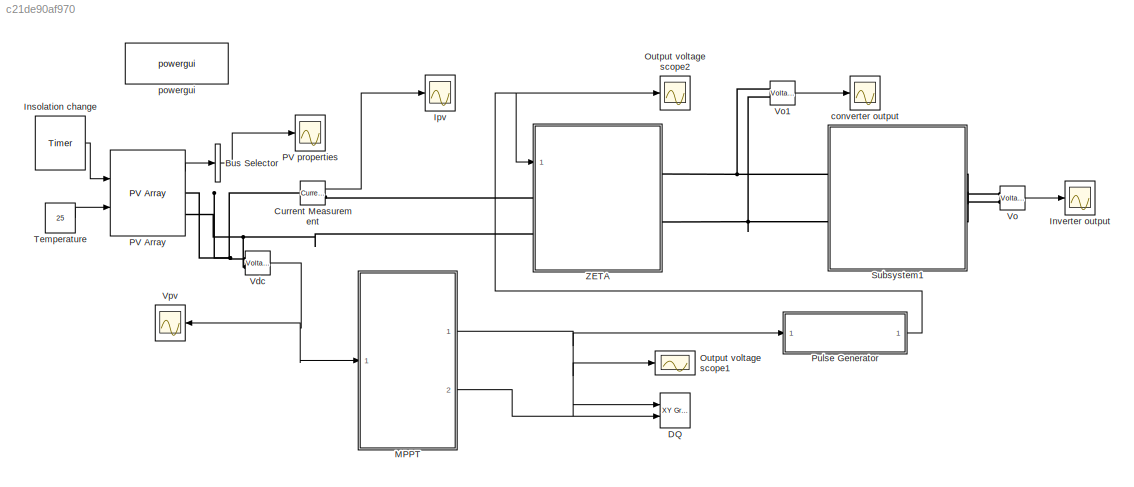
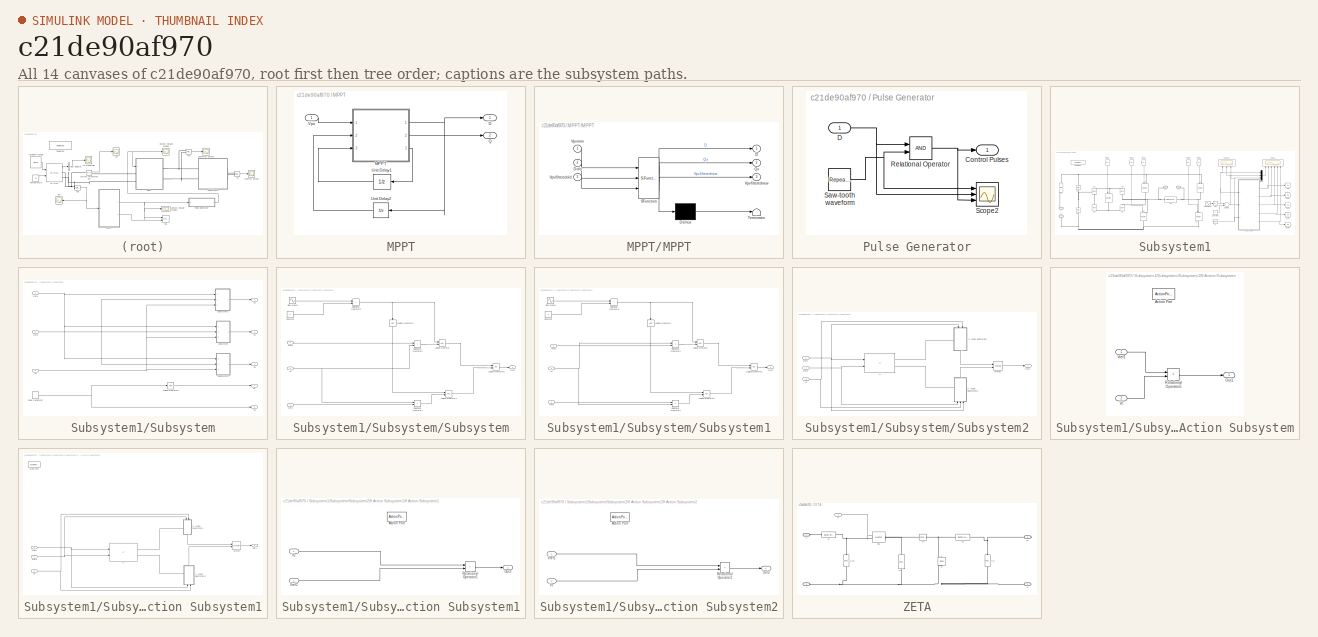
[diagram: thumbnail index - all 14 canvases of the model, root first then tree order]
MODEL slx_c21de90af970
KIND model
CONFIG AbsTol = auto
CONFIG EnableMultiTasking = off
CONFIG FixedStep = 1e-5
CONFIG MaxStep = 1e-4
CONFIG MinStep = auto
CONFIG RelTol = 1e-3
CONFIG SampleTimeConstraint = Unconstrained
CONFIG Solver = ode23tb
CONFIG SolverName = ode23tb
CONFIG StartTime = 0.0
CONFIG StopTime = .2
BLOCK [BusSelector] Bus Selector
  OutputAsBus = on
  OutputSignals = V_PV
  Ports = [1, 1]
BLOCK [Reference] Current Measurement  REF=powerlib/Measurements/Current Measurement
  Ports = [0, 1, 0, 0, 0, 1, 1]
  SourceBlock = powerlib/Measurements/Current Measurement
  SourceProductBaseCode = PS
  SourceProductName = Simscape Power Systems
  SourceType = Current Measurement
  UserDataPersistent = on
BLOCK [Reference] DQ  REF=simulink/Sinks/XY Graph
  Ports = [2]
  SourceBlock = simulink/Sinks/XY Graph
  SourceProductBaseCode = SL
  SourceProductName = Simulink
  SourceType = XY scope.
BLOCK [Reference] Insolation change  REF=powerlib_extras/Control 
Blocks/Timer
  Ports = [0, 1]
  SourceBlock = powerlib_extras/Control \nBlocks/Timer
  SourceType = Timer
BLOCK [Scope] Inverter output
  NumInputPorts = 1
  Ports = [1]
  ScopeSpecificationString = Simulink.scopes.TimeScopeBlockCfg('CurrentConfiguration', extmgr.ConfigurationSet(extmgr.Configuration('Core','General UI',true,'FigureColor',[0.501960784313725 0.501960784313725 0.501960784313725]),extmgr.Configuration('Core','Source UI',true),extmgr.Configuration('Sources','WiredSimulink',true,'DataLogging',true,'DataLoggingVariableName','inverterOutputMPPT','DataLoggingSaveFormat','StructureWit...<+2908ch>
BLOCK [Scope] Ipv
  NumInputPorts = 1
  Ports = [1]
  ScopeSpecificationString = Simulink.scopes.TimeScopeBlockCfg('CurrentConfiguration', extmgr.ConfigurationSet(extmgr.Configuration('Core','General UI',true,'FigureColor',[0.831372549019608 0.815686274509804 0.784313725490196]),extmgr.Configuration('Core','Source UI',true),extmgr.Configuration('Sources','WiredSimulink',true,'DataLoggingSaveFormat','StructureWithTime','DataLoggingDecimation','1','DataLoggingDecimateData',true)...<+2910ch>
BLOCK [SubSystem] MPPT
  Ports = [1, 2]
  RequestExecContextInheritance = off
  Variant = off
BLOCK [Outport] MPPT/D
  IconDisplay = Port number
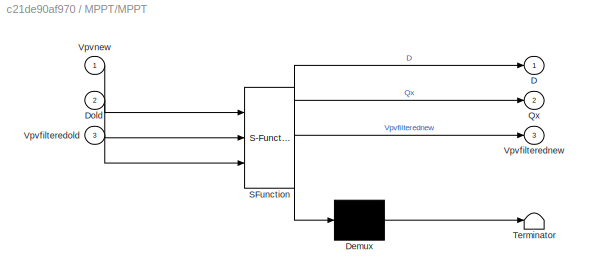
BLOCK [SubSystem] MPPT/MPPT
  ErrorFcn = Stateflow.Translate.translate
  PermitHierarchicalResolution = ExplicitOnly
  Ports = [3, 3]
  RequestExecContextInheritance = off
  SFBlockType = MATLAB Function
  TreatAsAtomicUnit = on
  Variant = off
BLOCK [Demux] MPPT/MPPT/ Demux 
  Outputs = 1
  Ports = [1, 1]
BLOCK [S-Function] MPPT/MPPT/ SFunction 
  EnableBusSupport = on
  FunctionName = sf_sfun
  PortCounts = [3 4]
  Ports = [3, 4]
  SFcnIsStateOwnerBlock = off
  SFunctionDeploymentMode = off
  Tag = Stateflow S-Function ZETAMPPTcomplete 1
BLOCK [Terminator] MPPT/MPPT/ Terminator 
BLOCK [Outport] MPPT/MPPT/D
  IconDisplay = Port number
BLOCK [Inport] MPPT/MPPT/Dold
  IconDisplay = Port number
  Port = 2
BLOCK [Outport] MPPT/MPPT/Qx
  IconDisplay = Port number
  Port = 2
BLOCK [Outport] MPPT/MPPT/Vpvfilterednew
  IconDisplay = Port number
  Port = 3
BLOCK [Inport] MPPT/MPPT/Vpvfilteredold
  IconDisplay = Port number
  Port = 3
BLOCK [Inport] MPPT/MPPT/Vpvnew
  IconDisplay = Port number
BLOCK [Outport] MPPT/Q
  IconDisplay = Port number
  Port = 2
BLOCK [UnitDelay] MPPT/Unit Delay1
  InputProcessing = Elements as channels (sample based)
  SampleTime = .0001
BLOCK [UnitDelay] MPPT/Unit Delay2
  InputProcessing = Elements as channels (sample based)
  SampleTime = .0001
BLOCK [Inport] MPPT/Vpv
  IconDisplay = Port number
BLOCK [Scope] Output voltage scope1
  NumInputPorts = 1
  Ports = [1]
  ScopeSpecificationString = Simulink.scopes.TimeScopeBlockCfg('CurrentConfiguration', extmgr.ConfigurationSet(extmgr.Configuration('Core','General UI',true,'FigureColor',[0.501960784313725 0.501960784313725 0.501960784313725]),extmgr.Configuration('Core','Source UI',true),extmgr.Configuration('Sources','WiredSimulink',true,'DataLoggingVariableName','ScopeData1','DataLoggingSaveFormat','StructureWithTime','DataLoggingDecimati...<+2903ch>
BLOCK [Scope] Output voltage scope2
  NumInputPorts = 1
  Ports = [1]
  ScopeSpecificationString = Simulink.scopes.TimeScopeBlockCfg('CurrentConfiguration', extmgr.ConfigurationSet(extmgr.Configuration('Core','General UI',true,'FigureColor',[0.501960784313725 0.501960784313725 0.501960784313725]),extmgr.Configuration('Core','Source UI',true),extmgr.Configuration('Sources','WiredSimulink',true,'DataLoggingVariableName','ScopeData1','DataLoggingSaveFormat','StructureWithTime','DataLoggingDecimati...<+2878ch>
BLOCK [Reference] PV Array  REF=re_lib/Solar/PV Array
  Ports = [2, 1, 0, 0, 0, 0, 2]
  SourceBlock = re_lib/Solar/PV Array
  SourceProductBaseCode = PS
  SourceProductName = Simscape Power Systems
  SourceType = PV array
BLOCK [Scope] PV properties
  NumInputPorts = 1
  Ports = [1]
  ScopeSpecificationString = Simulink.scopes.TimeScopeBlockCfg('CurrentConfiguration', extmgr.ConfigurationSet(extmgr.Configuration('Core','General UI',true,'FigureColor',[0.831372549019608 0.815686274509804 0.784313725490196]),extmgr.Configuration('Core','Source UI',true),extmgr.Configuration('Sources','WiredSimulink',true,'DataLogging',true,'DataLoggingSaveFormat','StructureWithTime','DataLoggingDecimation','1','DataLogging...<+2963ch>
BLOCK [SubSystem] Pulse Generator
  Ports = [1, 1]
  RequestExecContextInheritance = off
  Variant = off
BLOCK [Outport] Pulse Generator/Control Pulses
  IconDisplay = Port number
BLOCK [Inport] Pulse Generator/D
  IconDisplay = Port number
BLOCK [RelationalOperator] Pulse Generator/Relational Operator
  InputSameDT = off
  OutDataTypeStr = boolean
  Ports = [2, 1]
BLOCK [Reference] Pulse Generator/Saw-tooth waveform  REF=simulink/Sources/Repeating
Sequence
  Ports = [0, 1]
  SourceBlock = simulink/Sources/Repeating\nSequence
  SourceProductBaseCode = SL
  SourceProductName = Simulink
  SourceType = Repeating table
BLOCK [Scope] Pulse Generator/Scope2
  NumInputPorts = 3
  Ports = [3]
  ScopeSpecificationString = Simulink.scopes.TimeScopeBlockCfg('CurrentConfiguration', extmgr.ConfigurationSet(extmgr.Configuration('Core','General UI',true),extmgr.Configuration('Core','Source UI',true),extmgr.Configuration('Sources','WiredSimulink',true,'DataLoggingVariableName','ScopeData2','DataLoggingSaveFormat','StructureWithTime','DataLoggingLimitDataPoints',true,'DataLoggingDecimation','1','DataLoggingDecimateData',tr...<+3160ch>
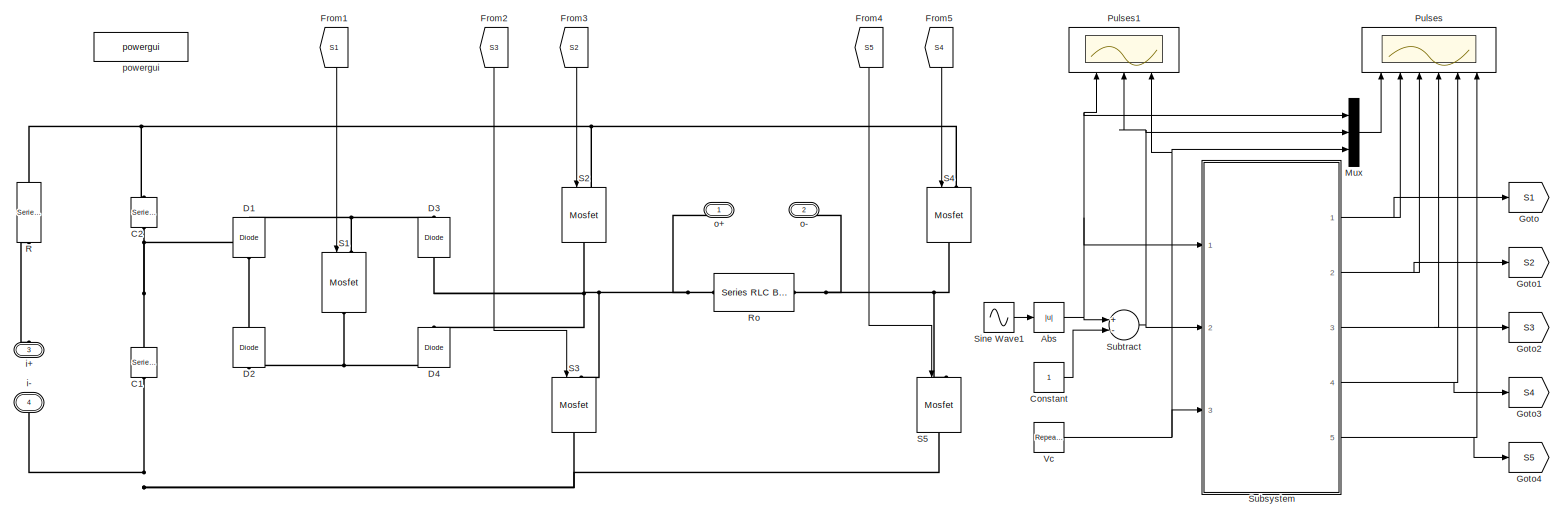
[diagram: Subsystem1 - part 1/1, most of the canvas]
BLOCK [SubSystem] Subsystem1
  Ports = [0, 0, 0, 0, 0, 2, 2]
  RequestExecContextInheritance = off
  Variant = off
BLOCK [Abs] Subsystem1/Abs
  SaturateOnIntegerOverflow = off
BLOCK [Reference] Subsystem1/C1  REF=powerlib/Elements/Series RLC Branch
  Ports = [0, 0, 0, 0, 0, 1, 1]
  SourceBlock = powerlib/Elements/Series RLC Branch
  SourceProductBaseCode = PS
  SourceProductName = Simscape Power Systems
  SourceType = Series RLC Branch
BLOCK [Reference] Subsystem1/C2  REF=powerlib/Elements/Series RLC Branch
  Ports = [0, 0, 0, 0, 0, 1, 1]
  SourceBlock = powerlib/Elements/Series RLC Branch
  SourceProductBaseCode = PS
  SourceProductName = Simscape Power Systems
  SourceType = Series RLC Branch
BLOCK [Constant] Subsystem1/Constant
BLOCK [Reference] Subsystem1/D1  REF=powerlib/Power
Electronics/Diode
  Ports = [0, 0, 0, 0, 0, 1, 1]
  SourceBlock = powerlib/Power\nElectronics/Diode
  SourceProductBaseCode = PS
  SourceProductName = Simscape Power Systems
  SourceType = Diode
BLOCK [Reference] Subsystem1/D2  REF=powerlib/Power
Electronics/Diode
  Ports = [0, 0, 0, 0, 0, 1, 1]
  SourceBlock = powerlib/Power\nElectronics/Diode
  SourceProductBaseCode = PS
  SourceProductName = Simscape Power Systems
  SourceType = Diode
BLOCK [Reference] Subsystem1/D3  REF=powerlib/Power
Electronics/Diode
  Ports = [0, 0, 0, 0, 0, 1, 1]
  SourceBlock = powerlib/Power\nElectronics/Diode
  SourceProductBaseCode = PS
  SourceProductName = Simscape Power Systems
  SourceType = Diode
BLOCK [Reference] Subsystem1/D4  REF=powerlib/Power
Electronics/Diode
  Ports = [0, 0, 0, 0, 0, 1, 1]
  SourceBlock = powerlib/Power\nElectronics/Diode
  SourceProductBaseCode = PS
  SourceProductName = Simscape Power Systems
  SourceType = Diode
BLOCK [From] Subsystem1/From1
  GotoTag = S1
BLOCK [From] Subsystem1/From2
  GotoTag = S3
BLOCK [From] Subsystem1/From3
  GotoTag = S2
BLOCK [From] Subsystem1/From4
  GotoTag = S5
BLOCK [From] Subsystem1/From5
  GotoTag = S4
BLOCK [Goto] Subsystem1/Goto
  GotoTag = S1
BLOCK [Goto] Subsystem1/Goto1
  GotoTag = S2
BLOCK [Goto] Subsystem1/Goto2
  GotoTag = S3
BLOCK [Goto] Subsystem1/Goto3
  GotoTag = S4
BLOCK [Goto] Subsystem1/Goto4
  GotoTag = S5
BLOCK [Mux] Subsystem1/Mux
  DisplayOption = bar
  Inputs = 3
  Ports = [3, 1]
BLOCK [Scope] Subsystem1/Pulses
  NumInputPorts = 6
  Ports = [6]
  ScopeSpecificationString = Simulink.scopes.TimeScopeBlockCfg('CurrentConfiguration', extmgr.ConfigurationSet(extmgr.Configuration('Core','General UI',true,'FigureColor',[0.501960784313725 0.501960784313725 0.501960784313725]),extmgr.Configuration('Core','Source UI',true),extmgr.Configuration('Sources','WiredSimulink',true,'DataLoggingSaveFormat','StructureWithTime','DataLoggingDecimation','1','DataLoggingDecimateData',true,...<+6623ch>
BLOCK [Scope] Subsystem1/Pulses1
  NumInputPorts = 3
  Ports = [3]
  ScopeSpecificationString = Simulink.scopes.TimeScopeBlockCfg('CurrentConfiguration', extmgr.ConfigurationSet(extmgr.Configuration('Core','General UI',true,'FigureColor',[0.501960784313725 0.501960784313725 0.501960784313725]),extmgr.Configuration('Core','Source UI',true),extmgr.Configuration('Sources','WiredSimulink',true,'DataLoggingSaveFormat','StructureWithTime','DataLoggingDecimation','1','DataLoggingDecimateData',true,...<+2163ch>
BLOCK [Reference] Subsystem1/R  REF=powerlib/Elements/Series RLC Branch
  Ports = [0, 0, 0, 0, 0, 1, 1]
  SourceBlock = powerlib/Elements/Series RLC Branch
  SourceProductBaseCode = PS
  SourceProductName = Simscape Power Systems
  SourceType = Series RLC Branch
BLOCK [Reference] Subsystem1/Ro  REF=powerlib/Elements/Series RLC Branch
  Ports = [0, 0, 0, 0, 0, 1, 1]
  SourceBlock = powerlib/Elements/Series RLC Branch
  SourceProductBaseCode = PS
  SourceProductName = Simscape Power Systems
  SourceType = Series RLC Branch
BLOCK [Reference] Subsystem1/S1  REF=powerlib/Power
Electronics/Mosfet
  Ports = [1, 0, 0, 0, 0, 1, 1]
  SourceBlock = powerlib/Power\nElectronics/Mosfet
  SourceProductBaseCode = PS
  SourceProductName = Simscape Power Systems
  SourceType = Mosfet
BLOCK [Reference] Subsystem1/S2  REF=powerlib/Power
Electronics/Mosfet
  Ports = [1, 0, 0, 0, 0, 1, 1]
  SourceBlock = powerlib/Power\nElectronics/Mosfet
  SourceProductBaseCode = PS
  SourceProductName = Simscape Power Systems
  SourceType = Mosfet
BLOCK [Reference] Subsystem1/S3  REF=powerlib/Power
Electronics/Mosfet
  Ports = [1, 0, 0, 0, 0, 1, 1]
  SourceBlock = powerlib/Power\nElectronics/Mosfet
  SourceProductBaseCode = PS
  SourceProductName = Simscape Power Systems
  SourceType = Mosfet
BLOCK [Reference] Subsystem1/S4  REF=powerlib/Power
Electronics/Mosfet
  Ports = [1, 0, 0, 0, 0, 1, 1]
  SourceBlock = powerlib/Power\nElectronics/Mosfet
  SourceProductBaseCode = PS
  SourceProductName = Simscape Power Systems
  SourceType = Mosfet
BLOCK [Reference] Subsystem1/S5  REF=powerlib/Power
Electronics/Mosfet
  Ports = [1, 0, 0, 0, 0, 1, 1]
  SourceBlock = powerlib/Power\nElectronics/Mosfet
  SourceProductBaseCode = PS
  SourceProductName = Simscape Power Systems
  SourceType = Mosfet
BLOCK [Sin] Subsystem1/Sine Wave1
  Amplitude = 2.5
  Frequency = 2*pi*50
  Ports = [0, 1]
  SampleTime = 0
  VectorParams1D = off
BLOCK [SubSystem] Subsystem1/Subsystem
  Ports = [3, 5]
  RequestExecContextInheritance = off
  Variant = off
BLOCK [Logic] Subsystem1/Subsystem/Logical Operator2
  AllPortsSameDT = off
  Operator = NOT
  OutDataTypeStr = boolean
  Ports = [1, 1]
BLOCK [DiscretePulseGenerator] Subsystem1/Subsystem/Pulse Generator
  Period = .02
  Ports = [0, 1]
  PulseType = Time based
  PulseWidth = 50
BLOCK [Outport] Subsystem1/Subsystem/S1
  IconDisplay = Port number
BLOCK [Outport] Subsystem1/Subsystem/S2
  IconDisplay = Port number
  Port = 2
BLOCK [Outport] Subsystem1/Subsystem/S3
  IconDisplay = Port number
  Port = 3
BLOCK [Outport] Subsystem1/Subsystem/S4
  IconDisplay = Port number
  Port = 4
BLOCK [Outport] Subsystem1/Subsystem/S5
  IconDisplay = Port number
  Port = 5
BLOCK [SubSystem] Subsystem1/Subsystem/Subsystem
  Ports = [3, 1]
  RequestExecContextInheritance = off
  Variant = off
BLOCK [Constant] Subsystem1/Subsystem/Subsystem/Constant
  Value = 0
BLOCK [Logic] Subsystem1/Subsystem/Subsystem/Logical Operator
  AllPortsSameDT = off
  OutDataTypeStr = boolean
  Ports = [2, 1]
BLOCK [Logic] Subsystem1/Subsystem/Subsystem/Logical Operator1
  AllPortsSameDT = off
  OutDataTypeStr = boolean
  Ports = [2, 1]
BLOCK [Logic] Subsystem1/Subsystem/Subsystem/Logical Operator3
  AllPortsSameDT = off
  Operator = OR
  OutDataTypeStr = boolean
  Ports = [2, 1]
BLOCK [Logic] Subsystem1/Subsystem/Subsystem/Logical Operator4
  AllPortsSameDT = off
  Operator = NOT
  OutDataTypeStr = boolean
  Ports = [1, 1]
BLOCK [Outport] Subsystem1/Subsystem/Subsystem/Out1
  IconDisplay = Port number
BLOCK [RelationalOperator] Subsystem1/Subsystem/Subsystem/Relational Operator1
  InputSameDT = off
  Operator = >
  OutDataTypeStr = boolean
  Ports = [2, 1]
BLOCK [RelationalOperator] Subsystem1/Subsystem/Subsystem/Relational Operator2
  InputSameDT = off
  Operator = >
  OutDataTypeStr = boolean
  Ports = [2, 1]
BLOCK [RelationalOperator] Subsystem1/Subsystem/Subsystem/Relational Operator3
  InputSameDT = off
  Operator = >
  OutDataTypeStr = boolean
  Ports = [2, 1]
BLOCK [Sin] Subsystem1/Subsystem/Subsystem/Sine Wave1
  Amplitude = 100
  Frequency = 2*pi*50
  Ports = [0, 1]
  SampleTime = 0
  VectorParams1D = off
BLOCK [Inport] Subsystem1/Subsystem/Subsystem/Vc
  IconDisplay = Port number
  Port = 3
BLOCK [Inport] Subsystem1/Subsystem/Subsystem/Vref1
  IconDisplay = Port number
BLOCK [Inport] Subsystem1/Subsystem/Subsystem/Vref2
  IconDisplay = Port number
  Port = 2
BLOCK [SubSystem] Subsystem1/Subsystem/Subsystem1
  Ports = [3, 1]
  RequestExecContextInheritance = off
  Variant = off
BLOCK [Constant] Subsystem1/Subsystem/Subsystem1/Constant
  Value = 0
BLOCK [Logic] Subsystem1/Subsystem/Subsystem1/Logical Operator
  AllPortsSameDT = off
  OutDataTypeStr = boolean
  Ports = [2, 1]
BLOCK [Logic] Subsystem1/Subsystem/Subsystem1/Logical Operator1
  AllPortsSameDT = off
  OutDataTypeStr = boolean
  Ports = [2, 1]
BLOCK [Logic] Subsystem1/Subsystem/Subsystem1/Logical Operator3
  AllPortsSameDT = off
  Operator = OR
  OutDataTypeStr = boolean
  Ports = [2, 1]
BLOCK [Logic] Subsystem1/Subsystem/Subsystem1/Logical Operator4
  AllPortsSameDT = off
  Operator = NOT
  OutDataTypeStr = boolean
  Ports = [1, 1]
BLOCK [Outport] Subsystem1/Subsystem/Subsystem1/Out1
  IconDisplay = Port number
BLOCK [RelationalOperator] Subsystem1/Subsystem/Subsystem1/Relational Operator1
  InputSameDT = off
  Operator = >
  OutDataTypeStr = boolean
  Ports = [2, 1]
BLOCK [RelationalOperator] Subsystem1/Subsystem/Subsystem1/Relational Operator2
  InputSameDT = off
  Operator = >
  OutDataTypeStr = boolean
  Ports = [2, 1]
BLOCK [RelationalOperator] Subsystem1/Subsystem/Subsystem1/Relational Operator3
  InputSameDT = off
  Operator = >
  OutDataTypeStr = boolean
  Ports = [2, 1]
BLOCK [Sin] Subsystem1/Subsystem/Subsystem1/Sine Wave1
  Amplitude = 100
  Frequency = 2*pi*50
  Ports = [0, 1]
  SampleTime = 0
  VectorParams1D = off
BLOCK [Inport] Subsystem1/Subsystem/Subsystem1/Vc
  IconDisplay = Port number
  Port = 3
BLOCK [Inport] Subsystem1/Subsystem/Subsystem1/Vref1
  IconDisplay = Port number
BLOCK [Inport] Subsystem1/Subsystem/Subsystem1/Vref2
  IconDisplay = Port number
  Port = 2
BLOCK [SubSystem] Subsystem1/Subsystem/Subsystem2
  Ports = [3, 1]
  RequestExecContextInheritance = off
  Variant = off
BLOCK [If] Subsystem1/Subsystem/Subsystem2/If
  IfExpression = u1 < 75 & u2 < 0
  NumInputs = 2
  Ports = [2, 2]
BLOCK [SubSystem] Subsystem1/Subsystem/Subsystem2/If Action Subsystem
  Ports = [2, 1, 0, 0, 0, 0, 0, 1]
  RequestExecContextInheritance = off
  TreatAsAtomicUnit = on
  Variant = off
BLOCK [ActionPort] Subsystem1/Subsystem/Subsystem2/If Action Subsystem/Action Port
  ActionType = then
BLOCK [Outport] Subsystem1/Subsystem/Subsystem2/If Action Subsystem/Out1
  IconDisplay = Port number
BLOCK [RelationalOperator] Subsystem1/Subsystem/Subsystem2/If Action Subsystem/Relational Operator5
  InputSameDT = off
  Operator = >
  OutDataTypeStr = boolean
  Ports = [2, 1]
BLOCK [Inport] Subsystem1/Subsystem/Subsystem2/If Action Subsystem/Vc
  IconDisplay = Port number
  Port = 2
BLOCK [Inport] Subsystem1/Subsystem/Subsystem2/If Action Subsystem/Vref1
  IconDisplay = Port number
BLOCK [SubSystem] Subsystem1/Subsystem/Subsystem2/If Action Subsystem1
  Ports = [3, 1, 0, 0, 0, 0, 0, 1]
  RequestExecContextInheritance = off
  TreatAsAtomicUnit = on
  Variant = off
BLOCK [ActionPort] Subsystem1/Subsystem/Subsystem2/If Action Subsystem1/Action Port
  ActionType = else
BLOCK [If] Subsystem1/Subsystem/Subsystem2/If Action Subsystem1/If
  IfExpression = u2 > 0
  NumInputs = 2
  Ports = [2, 2]
BLOCK [SubSystem] Subsystem1/Subsystem/Subsystem2/If Action Subsystem1/If Action Subsystem1
  Ports = [2, 1, 0, 0, 0, 0, 0, 1]
  RequestExecContextInheritance = off
  TreatAsAtomicUnit = on
  Variant = off
BLOCK [ActionPort] Subsystem1/Subsystem/Subsystem2/If Action Subsystem1/If Action Subsystem1/Action Port
  ActionType = then
BLOCK [Outport] Subsystem1/Subsystem/Subsystem2/If Action Subsystem1/If Action Subsystem1/Out3
  IconDisplay = Port number
BLOCK [RelationalOperator] Subsystem1/Subsystem/Subsystem2/If Action Subsystem1/If Action Subsystem1/Relational Operator1
  InputSameDT = off
  Operator = >
  OutDataTypeStr = boolean
  Ports = [2, 1]
BLOCK [Inport] Subsystem1/Subsystem/Subsystem2/If Action Subsystem1/If Action Subsystem1/Vc
  IconDisplay = Port number
  Port = 2
BLOCK [Inport] Subsystem1/Subsystem/Subsystem2/If Action Subsystem1/If Action Subsystem1/Vref2
  IconDisplay = Port number
BLOCK [SubSystem] Subsystem1/Subsystem/Subsystem2/If Action Subsystem1/If Action Subsystem2
  Ports = [2, 1, 0, 0, 0, 0, 0, 1]
  RequestExecContextInheritance = off
  TreatAsAtomicUnit = on
  Variant = off
BLOCK [ActionPort] Subsystem1/Subsystem/Subsystem2/If Action Subsystem1/If Action Subsystem2/Action Port
  ActionType = else
BLOCK [Outport] Subsystem1/Subsystem/Subsystem2/If Action Subsystem1/If Action Subsystem2/Out3
  IconDisplay = Port number
BLOCK [RelationalOperator] Subsystem1/Subsystem/Subsystem2/If Action Subsystem1/If Action Subsystem2/Relational Operator1
  InputSameDT = off
  Operator = >
  OutDataTypeStr = boolean
  Ports = [2, 1]
BLOCK [Inport] Subsystem1/Subsystem/Subsystem2/If Action Subsystem1/If Action Subsystem2/Vc
  IconDisplay = Port number
  Port = 2
BLOCK [Inport] Subsystem1/Subsystem/Subsystem2/If Action Subsystem1/If Action Subsystem2/Vref1
  IconDisplay = Port number
BLOCK [Merge] Subsystem1/Subsystem/Subsystem2/If Action Subsystem1/Merge
  Ports = [2, 1]
BLOCK [Outport] Subsystem1/Subsystem/Subsystem2/If Action Subsystem1/Out1
  IconDisplay = Port number
BLOCK [Inport] Subsystem1/Subsystem/Subsystem2/If Action Subsystem1/Vc
  IconDisplay = Port number
  Port = 2
BLOCK [Inport] Subsystem1/Subsystem/Subsystem2/If Action Subsystem1/Vref1
  IconDisplay = Port number
  Port = 3
BLOCK [Inport] Subsystem1/Subsystem/Subsystem2/If Action Subsystem1/Vref2
  IconDisplay = Port number
BLOCK [Merge] Subsystem1/Subsystem/Subsystem2/Merge
  Ports = [2, 1]
BLOCK [Outport] Subsystem1/Subsystem/Subsystem2/Out1
  IconDisplay = Port number
BLOCK [Inport] Subsystem1/Subsystem/Subsystem2/Vc
  IconDisplay = Port number
  Port = 3
BLOCK [Inport] Subsystem1/Subsystem/Subsystem2/Vref1
  IconDisplay = Port number
BLOCK [Inport] Subsystem1/Subsystem/Subsystem2/Vref2
  IconDisplay = Port number
  Port = 2
BLOCK [Inport] Subsystem1/Subsystem/Vc
  IconDisplay = Port number
  Port = 3
BLOCK [Inport] Subsystem1/Subsystem/Vref1
  IconDisplay = Port number
BLOCK [Inport] Subsystem1/Subsystem/Vref2
  IconDisplay = Port number
  Port = 2
BLOCK [Sum] Subsystem1/Subtract
  InputSameDT = off
  Inputs = +-
  OutDataTypeStr = Inherit: Inherit via internal rule
  Ports = [2, 1]
  SaturateOnIntegerOverflow = off
BLOCK [Reference] Subsystem1/Vc  REF=simulink/Sources/Repeating
Sequence
  Ports = [0, 1]
  SourceBlock = simulink/Sources/Repeating\nSequence
  SourceProductBaseCode = SL
  SourceProductName = Simulink
  SourceType = Repeating table
BLOCK [PMIOPort] Subsystem1/i+
  Port = 3
  Side = Left
BLOCK [PMIOPort] Subsystem1/i-
  Port = 4
  Side = Left
BLOCK [PMIOPort] Subsystem1/o+
  Port = 1
  Side = Right
BLOCK [PMIOPort] Subsystem1/o-
  Port = 2
  Side = Right
BLOCK [Reference] Subsystem1/powergui  REF=powerlib/powergui
  Ports = []
  Priority = 1
  SourceBlock = powerlib/powergui
  SourceProductBaseCode = PS
  SourceProductName = Simscape Power Systems
  SourceType = PSB option menu block
BLOCK [Constant] Temperature
  SampleTime = 2e-5
  Value = 25
  VectorParams1D = off
BLOCK [Reference] Vdc   REF=powerlib/Measurements/Voltage Measurement
  AttributesFormatString = \n
  Ports = [0, 1, 0, 0, 0, 2]
  SourceBlock = powerlib/Measurements/Voltage Measurement
  SourceProductBaseCode = PS
  SourceProductName = Simscape Power Systems
  SourceType = Voltage Measurement
  Tag = PoWeRsYsTeMmEaSuReMeNt
BLOCK [Reference] Vo  REF=powerlib/Measurements/Voltage Measurement
  Ports = [0, 1, 0, 0, 0, 2]
  SourceBlock = powerlib/Measurements/Voltage Measurement
  SourceProductBaseCode = PS
  SourceProductName = Simscape Power Systems
  SourceType = Voltage Measurement
BLOCK [Reference] Vo1  REF=powerlib/Measurements/Voltage Measurement
  Ports = [0, 1, 0, 0, 0, 2]
  SourceBlock = powerlib/Measurements/Voltage Measurement
  SourceProductBaseCode = PS
  SourceProductName = Simscape Power Systems
  SourceType = Voltage Measurement
BLOCK [Scope] Vpv
  NumInputPorts = 1
  Ports = [1]
  ScopeSpecificationString = Simulink.scopes.TimeScopeBlockCfg('CurrentConfiguration', extmgr.ConfigurationSet(extmgr.Configuration('Core','General UI',true,'FigureColor',[0.831372549019608 0.815686274509804 0.784313725490196]),extmgr.Configuration('Core','Source UI',true),extmgr.Configuration('Sources','WiredSimulink',true,'DataLogging',true,'DataLoggingSaveFormat','StructureWithTime','DataLoggingDecimation','1','DataLogging...<+2959ch>
BLOCK [SubSystem] ZETA
  Ports = [1, 0, 0, 0, 0, 2, 2]
  RequestExecContextInheritance = off
  Variant = off
BLOCK [PMIOPort] ZETA/+i
  Port = 1
  Side = Left
BLOCK [PMIOPort] ZETA/+o
  Port = 2
  Side = Right
BLOCK [PMIOPort] ZETA/-i
  Port = 3
  Side = Left
BLOCK [PMIOPort] ZETA/-o
  Port = 4
  Side = Right
BLOCK [Reference] ZETA/Cc  REF=powerlib/Elements/Series RLC Branch
  Ports = [0, 0, 0, 0, 0, 1, 1]
  SourceBlock = powerlib/Elements/Series RLC Branch
  SourceProductBaseCode = PS
  SourceProductName = Simscape Power Systems
  SourceType = Series RLC Branch
BLOCK [Reference] ZETA/Co  REF=powerlib/Elements/Series RLC Branch
  Ports = [0, 0, 0, 0, 0, 1, 1]
  SourceBlock = powerlib/Elements/Series RLC Branch
  SourceProductBaseCode = PS
  SourceProductName = Simscape Power Systems
  SourceType = Series RLC Branch
BLOCK [Reference] ZETA/Co1  REF=powerlib/Elements/Series RLC Branch
  Ports = [0, 0, 0, 0, 0, 1, 1]
  SourceBlock = powerlib/Elements/Series RLC Branch
  SourceProductBaseCode = PS
  SourceProductName = Simscape Power Systems
  SourceType = Series RLC Branch
BLOCK [Reference] ZETA/D  REF=powerlib/Power
Electronics/Diode
  Ports = [0, 0, 0, 0, 0, 1, 1]
  SourceBlock = powerlib/Power\nElectronics/Diode
  SourceProductBaseCode = PS
  SourceProductName = Simscape Power Systems
  SourceType = Diode
BLOCK [Reference] ZETA/L1  REF=powerlib/Elements/Series RLC Branch
  Ports = [0, 0, 0, 0, 0, 1, 1]
  SourceBlock = powerlib/Elements/Series RLC Branch
  SourceProductBaseCode = PS
  SourceProductName = Simscape Power Systems
  SourceType = Series RLC Branch
BLOCK [Reference] ZETA/L2  REF=powerlib/Elements/Series RLC Branch
  Ports = [0, 0, 0, 0, 0, 1, 1]
  SourceBlock = powerlib/Elements/Series RLC Branch
  SourceProductBaseCode = PS
  SourceProductName = Simscape Power Systems
  SourceType = Series RLC Branch
BLOCK [Reference] ZETA/R  REF=powerlib/Elements/Series RLC Branch
  Ports = [0, 0, 0, 0, 0, 1, 1]
  SourceBlock = powerlib/Elements/Series RLC Branch
  SourceProductBaseCode = PS
  SourceProductName = Simscape Power Systems
  SourceType = Series RLC Branch
BLOCK [Reference] ZETA/Sw  REF=powerlib/Power
Electronics/Mosfet
  Ports = [1, 0, 0, 0, 0, 1, 1]
  SourceBlock = powerlib/Power\nElectronics/Mosfet
  SourceProductBaseCode = PS
  SourceProductName = Simscape Power Systems
  SourceType = Mosfet
BLOCK [Inport] ZETA/d
  IconDisplay = Port number
BLOCK [Scope] converter output
  NumInputPorts = 1
  Ports = [1]
  ScopeSpecificationString = Simulink.scopes.TimeScopeBlockCfg('CurrentConfiguration', extmgr.ConfigurationSet(extmgr.Configuration('Core','General UI',true,'FigureColor',[0.501960784313725 0.501960784313725 0.501960784313725]),extmgr.Configuration('Core','Source UI',true),extmgr.Configuration('Sources','WiredSimulink',true,'DataLogging',true,'DataLoggingVariableName','converterop','DataLoggingSaveFormat','StructureWithTime',...<+2904ch>
BLOCK [Reference] powergui  REF=powerlib/powergui
  Ports = []
  Priority = 1
  SourceBlock = powerlib/powergui
  SourceProductBaseCode = PS
  SourceProductName = Simscape Power Systems
  SourceType = PSB option menu block
LINE Bus Selector:1 -> PV properties:1
LINE Current Measurement:1 -> Ipv:1
LINE Insolation change:1 -> PV Array:1
NET MPPT/MPPT:1 -> MPPT/D:1, MPPT/Unit Delay2:1
LINE MPPT/MPPT:2 -> MPPT/Q:1
LINE MPPT/MPPT:3 -> MPPT/Unit Delay1:1
LINE MPPT/Unit Delay1:1 -> MPPT/MPPT:3
LINE MPPT/Unit Delay2:1 -> MPPT/MPPT:2
LINE MPPT/Vpv:1 -> MPPT/MPPT:1
NET MPPT:1 -> DQ:1, Output voltage scope1:1, Pulse Generator:1
LINE MPPT:2 -> DQ:2
LINE PV Array:1 -> Bus Selector:1
NET Pulse Generator/D:1 -> Pulse Generator/Relational Operator:1, Pulse Generator/Scope2:2
NET Pulse Generator/Relational Operator:1 -> Pulse Generator/Control Pulses:1, Pulse Generator/Scope2:3
NET Pulse Generator/Saw-tooth waveform:1 -> Pulse Generator/Relational Operator:2, Pulse Generator/Scope2:1
NET Pulse Generator:1 -> Output voltage scope2:1, ZETA:1
NET Subsystem1/Abs:1 -> Subsystem1/Mux:1, Subsystem1/Pulses1:1, Subsystem1/Subsystem:1, Subsystem1/Subtract:1
LINE Subsystem1/Constant:1 -> Subsystem1/Subtract:2
LINE Subsystem1/From1:1 -> Subsystem1/S1:1
LINE Subsystem1/From2:1 -> Subsystem1/S3:1
LINE Subsystem1/From3:1 -> Subsystem1/S2:1
LINE Subsystem1/From4:1 -> Subsystem1/S5:1
LINE Subsystem1/From5:1 -> Subsystem1/S4:1
LINE Subsystem1/Mux:1 -> Subsystem1/Pulses:1
LINE Subsystem1/Sine Wave1:1 -> Subsystem1/Abs:1
LINE Subsystem1/Subsystem/Logical Operator2:1 -> Subsystem1/Subsystem/S4:1
NET Subsystem1/Subsystem/Pulse Generator:1 -> Subsystem1/Subsystem/Logical Operator2:1, Subsystem1/Subsystem/S5:1
LINE Subsystem1/Subsystem/Subsystem/Constant:1 -> Subsystem1/Subsystem/Subsystem/Relational Operator3:2
LINE Subsystem1/Subsystem/Subsystem/Logical Operator1:1 -> Subsystem1/Subsystem/Subsystem/Logical Operator3:2
LINE Subsystem1/Subsystem/Subsystem/Logical Operator3:1 -> Subsystem1/Subsystem/Subsystem/Out1:1
LINE Subsystem1/Subsystem/Subsystem/Logical Operator4:1 -> Subsystem1/Subsystem/Subsystem/Logical Operator1:1
LINE Subsystem1/Subsystem/Subsystem/Logical Operator:1 -> Subsystem1/Subsystem/Subsystem/Logical Operator3:1
LINE Subsystem1/Subsystem/Subsystem/Relational Operator1:1 -> Subsystem1/Subsystem/Subsystem/Logical Operator1:2
LINE Subsystem1/Subsystem/Subsystem/Relational Operator2:1 -> Subsystem1/Subsystem/Subsystem/Logical Operator:2
NET Subsystem1/Subsystem/Subsystem/Relational Operator3:1 -> Subsystem1/Subsystem/Subsystem/Logical Operator4:1, Subsystem1/Subsystem/Subsystem/Logical Operator:1
LINE Subsystem1/Subsystem/Subsystem/Sine Wave1:1 -> Subsystem1/Subsystem/Subsystem/Relational Operator3:1
NET Subsystem1/Subsystem/Subsystem/Vc:1 -> Subsystem1/Subsystem/Subsystem/Relational Operator1:1, Subsystem1/Subsystem/Subsystem/Relational Operator2:2
LINE Subsystem1/Subsystem/Subsystem/Vref1:1 -> Subsystem1/Subsystem/Subsystem/Relational Operator1:2
LINE Subsystem1/Subsystem/Subsystem/Vref2:1 -> Subsystem1/Subsystem/Subsystem/Relational Operator2:1
LINE Subsystem1/Subsystem/Subsystem1/Constant:1 -> Subsystem1/Subsystem/Subsystem1/Relational Operator3:2
LINE Subsystem1/Subsystem/Subsystem1/Logical Operator1:1 -> Subsystem1/Subsystem/Subsystem1/Logical Operator3:2
LINE Subsystem1/Subsystem/Subsystem1/Logical Operator3:1 -> Subsystem1/Subsystem/Subsystem1/Out1:1
LINE Subsystem1/Subsystem/Subsystem1/Logical Operator4:1 -> Subsystem1/Subsystem/Subsystem1/Logical Operator1:1
LINE Subsystem1/Subsystem/Subsystem1/Logical Operator:1 -> Subsystem1/Subsystem/Subsystem1/Logical Operator3:1
LINE Subsystem1/Subsystem/Subsystem1/Relational Operator1:1 -> Subsystem1/Subsystem/Subsystem1/Logical Operator1:2
LINE Subsystem1/Subsystem/Subsystem1/Relational Operator2:1 -> Subsystem1/Subsystem/Subsystem1/Logical Operator:2
NET Subsystem1/Subsystem/Subsystem1/Relational Operator3:1 -> Subsystem1/Subsystem/Subsystem1/Logical Operator4:1, Subsystem1/Subsystem/Subsystem1/Logical Operator:1
LINE Subsystem1/Subsystem/Subsystem1/Sine Wave1:1 -> Subsystem1/Subsystem/Subsystem1/Relational Operator3:1
NET Subsystem1/Subsystem/Subsystem1/Vc:1 -> Subsystem1/Subsystem/Subsystem1/Relational Operator1:2, Subsystem1/Subsystem/Subsystem1/Relational Operator2:1
LINE Subsystem1/Subsystem/Subsystem1/Vref1:1 -> Subsystem1/Subsystem/Subsystem1/Relational Operator2:2
LINE Subsystem1/Subsystem/Subsystem1/Vref2:1 -> Subsystem1/Subsystem/Subsystem1/Relational Operator1:1
LINE Subsystem1/Subsystem/Subsystem1:1 -> Subsystem1/Subsystem/S3:1
LINE Subsystem1/Subsystem/Subsystem2/If Action Subsystem/Relational Operator5:1 -> Subsystem1/Subsystem/Subsystem2/If Action Subsystem/Out1:1
LINE Subsystem1/Subsystem/Subsystem2/If Action Subsystem/Vc:1 -> Subsystem1/Subsystem/Subsystem2/If Action Subsystem/Relational Operator5:2
LINE Subsystem1/Subsystem/Subsystem2/If Action Subsystem/Vref1:1 -> Subsystem1/Subsystem/Subsystem2/If Action Subsystem/Relational Operator5:1
LINE Subsystem1/Subsystem/Subsystem2/If Action Subsystem1/If Action Subsystem1/Relational Operator1:1 -> Subsystem1/Subsystem/Subsystem2/If Action Subsystem1/If Action Subsystem1/Out3:1
LINE Subsystem1/Subsystem/Subsystem2/If Action Subsystem1/If Action Subsystem1/Vc:1 -> Subsystem1/Subsystem/Subsystem2/If Action Subsystem1/If Action Subsystem1/Relational Operator1:1
LINE Subsystem1/Subsystem/Subsystem2/If Action Subsystem1/If Action Subsystem1/Vref2:1 -> Subsystem1/Subsystem/Subsystem2/If Action Subsystem1/If Action Subsystem1/Relational Operator1:2
LINE Subsystem1/Subsystem/Subsystem2/If Action Subsystem1/If Action Subsystem1:1 -> Subsystem1/Subsystem/Subsystem2/If Action Subsystem1/Merge:1
LINE Subsystem1/Subsystem/Subsystem2/If Action Subsystem1/If Action Subsystem2/Relational Operator1:1 -> Subsystem1/Subsystem/Subsystem2/If Action Subsystem1/If Action Subsystem2/Out3:1
LINE Subsystem1/Subsystem/Subsystem2/If Action Subsystem1/If Action Subsystem2/Vc:1 -> Subsystem1/Subsystem/Subsystem2/If Action Subsystem1/If Action Subsystem2/Relational Operator1:2
LINE Subsystem1/Subsystem/Subsystem2/If Action Subsystem1/If Action Subsystem2/Vref1:1 -> Subsystem1/Subsystem/Subsystem2/If Action Subsystem1/If Action Subsystem2/Relational Operator1:1
LINE Subsystem1/Subsystem/Subsystem2/If Action Subsystem1/If Action Subsystem2:1 -> Subsystem1/Subsystem/Subsystem2/If Action Subsystem1/Merge:2
LINE Subsystem1/Subsystem/Subsystem2/If Action Subsystem1/If:1 -> Subsystem1/Subsystem/Subsystem2/If Action Subsystem1/If Action Subsystem1:ifaction
LINE Subsystem1/Subsystem/Subsystem2/If Action Subsystem1/If:2 -> Subsystem1/Subsystem/Subsystem2/If Action Subsystem1/If Action Subsystem2:ifaction
LINE Subsystem1/Subsystem/Subsystem2/If Action Subsystem1/Merge:1 -> Subsystem1/Subsystem/Subsystem2/If Action Subsystem1/Out1:1
NET Subsystem1/Subsystem/Subsystem2/If Action Subsystem1/Vc:1 -> Subsystem1/Subsystem/Subsystem2/If Action Subsystem1/If Action Subsystem1:2, Subsystem1/Subsystem/Subsystem2/If Action Subsystem1/If Action Subsystem2:2
NET Subsystem1/Subsystem/Subsystem2/If Action Subsystem1/Vref1:1 -> Subsystem1/Subsystem/Subsystem2/If Action Subsystem1/If Action Subsystem2:1, Subsystem1/Subsystem/Subsystem2/If Action Subsystem1/If:1
NET Subsystem1/Subsystem/Subsystem2/If Action Subsystem1/Vref2:1 -> Subsystem1/Subsystem/Subsystem2/If Action Subsystem1/If Action Subsystem1:1, Subsystem1/Subsystem/Subsystem2/If Action Subsystem1/If:2
LINE Subsystem1/Subsystem/Subsystem2/If Action Subsystem1:1 -> Subsystem1/Subsystem/Subsystem2/Merge:2
LINE Subsystem1/Subsystem/Subsystem2/If Action Subsystem:1 -> Subsystem1/Subsystem/Subsystem2/Merge:1
LINE Subsystem1/Subsystem/Subsystem2/If:1 -> Subsystem1/Subsystem/Subsystem2/If Action Subsystem:ifaction
LINE Subsystem1/Subsystem/Subsystem2/If:2 -> Subsystem1/Subsystem/Subsystem2/If Action Subsystem1:ifaction
LINE Subsystem1/Subsystem/Subsystem2/Merge:1 -> Subsystem1/Subsystem/Subsystem2/Out1:1
NET Subsystem1/Subsystem/Subsystem2/Vc:1 -> Subsystem1/Subsystem/Subsystem2/If Action Subsystem1:2, Subsystem1/Subsystem/Subsystem2/If Action Subsystem:2
NET Subsystem1/Subsystem/Subsystem2/Vref1:1 -> Subsystem1/Subsystem/Subsystem2/If Action Subsystem1:3, Subsystem1/Subsystem/Subsystem2/If Action Subsystem:1, Subsystem1/Subsystem/Subsystem2/If:1
NET Subsystem1/Subsystem/Subsystem2/Vref2:1 -> Subsystem1/Subsystem/Subsystem2/If Action Subsystem1:1, Subsystem1/Subsystem/Subsystem2/If:2
LINE Subsystem1/Subsystem/Subsystem2:1 -> Subsystem1/Subsystem/S1:1
LINE Subsystem1/Subsystem/Subsystem:1 -> Subsystem1/Subsystem/S2:1
NET Subsystem1/Subsystem/Vc:1 -> Subsystem1/Subsystem/Subsystem1:3, Subsystem1/Subsystem/Subsystem2:3, Subsystem1/Subsystem/Subsystem:3
NET Subsystem1/Subsystem/Vref1:1 -> Subsystem1/Subsystem/Subsystem1:1, Subsystem1/Subsystem/Subsystem2:1, Subsystem1/Subsystem/Subsystem:1
NET Subsystem1/Subsystem/Vref2:1 -> Subsystem1/Subsystem/Subsystem1:2, Subsystem1/Subsystem/Subsystem2:2, Subsystem1/Subsystem/Subsystem:2
NET Subsystem1/Subsystem:1 -> Subsystem1/Goto:1, Subsystem1/Pulses:2
NET Subsystem1/Subsystem:2 -> Subsystem1/Goto1:1, Subsystem1/Pulses:3
NET Subsystem1/Subsystem:3 -> Subsystem1/Goto2:1, Subsystem1/Pulses:4
NET Subsystem1/Subsystem:4 -> Subsystem1/Goto3:1, Subsystem1/Pulses:5
NET Subsystem1/Subsystem:5 -> Subsystem1/Goto4:1, Subsystem1/Pulses:6
NET Subsystem1/Subtract:1 -> Subsystem1/Mux:2, Subsystem1/Pulses1:2, Subsystem1/Subsystem:2
NET Subsystem1/Vc:1 -> Subsystem1/Mux:3, Subsystem1/Pulses1:3, Subsystem1/Subsystem:3
LINE Temperature:1 -> PV Array:2
NET Vdc :1 -> MPPT:1, Vpv:1
LINE Vo1:1 -> converter output:1
LINE Vo:1 -> Inverter output:1
LINE ZETA/d:1 -> ZETA/Sw:1
PNET net1: Current Measurement:LConn1 -- PV Array:RConn1 -- Vdc :LConn1
PLINE Current Measurement:RConn1 -- ZETA:LConn1
PNET net2: PV Array:RConn2 -- Vdc :LConn2 -- ZETA:LConn2
PNET net3: Subsystem1/C1:LConn1 -- Subsystem1/C2:RConn1 -- Subsystem1/D1:LConn1 -- Subsystem1/D2:RConn1
PNET net4: Subsystem1/C1:RConn1 -- Subsystem1/S3:RConn1 -- Subsystem1/S5:RConn1 -- Subsystem1/i-:RConn1
PNET net5: Subsystem1/C2:LConn1 -- Subsystem1/R:RConn1 -- Subsystem1/S2:LConn1 -- Subsystem1/S4:LConn1
PNET net6: Subsystem1/D1:RConn1 -- Subsystem1/D3:RConn1 -- Subsystem1/S1:LConn1
PNET net7: Subsystem1/D2:LConn1 -- Subsystem1/D4:LConn1 -- Subsystem1/S1:RConn1
PNET net8: Subsystem1/D3:LConn1 -- Subsystem1/D4:RConn1 -- Subsystem1/Ro:LConn1 -- Subsystem1/S2:RConn1 -- Subsystem1/S3:LConn1 -- Subsystem1/o+:RConn1
PLINE Subsystem1/R:LConn1 -- Subsystem1/i+:RConn1
PNET net9: Subsystem1/Ro:RConn1 -- Subsystem1/S4:RConn1 -- Subsystem1/S5:LConn1 -- Subsystem1/o-:RConn1
PNET net10: Subsystem1:LConn1 -- Vo1:LConn1 -- ZETA:RConn1
PNET net11: Subsystem1:LConn2 -- Vo1:LConn2 -- ZETA:RConn2
PLINE Subsystem1:RConn1 -- Vo:LConn1
PLINE Subsystem1:RConn2 -- Vo:LConn2
PLINE ZETA/+i:RConn1 -- ZETA/R:LConn1
PNET net12: ZETA/+o:RConn1 -- ZETA/Co:LConn1 -- ZETA/L2:RConn1
PNET net13: ZETA/-i:RConn1 -- ZETA/-o:RConn1 -- ZETA/Co1:RConn1 -- ZETA/Co:RConn1 -- ZETA/D:LConn1 -- ZETA/L1:RConn1
PNET net14: ZETA/Cc:LConn1 -- ZETA/L1:LConn1 -- ZETA/Sw:RConn1
PNET net15: ZETA/Cc:RConn1 -- ZETA/D:RConn1 -- ZETA/L2:LConn1
PNET net16: ZETA/Co1:LConn1 -- ZETA/R:RConn1 -- ZETA/Sw:LConn1
note: NET lines group one-source signal fan-out (src -> all destinations, sorted); 1:1 wires keep LINE; PNET lines group multi-terminal physical nets as a canonical sorted terminal list (undirected conserving connections); 2-terminal nets keep the pairwise PLINE form
CHART MPPT/MPPT states=1 transitions=1
  STATE_LABEL 'eML_blk_kernel()'
  STATE_LABEL 'SCRIPT:\nfunction [D,Qx,Vpvfilterednew]  = MPPT(Vpvnew,Dold,Vpvfilteredold)\n%function [D,Qx,Vpvfilterednew,Ipvfilterednew,Ppv,delVpvnew,delPpv]  = MPPT( Ipvnew, Vpvnew,Dold,Vpvfilteredold,Ipvfilteredold,Ppvold,delVpvold,delPpvold)\n\nTdel = 1/(25e3);\nt = 15.9e-3;\na = (Tdel/(Tdel+t));\nVpvfilterednew = ((Vpvfilteredold*(a-1))+(a*(Vpvnew)));\n\n% Ipvfilterednew = ((Ipvfilteredold*(a-1))+(a*(Ipvnew)));\n% K...<+517ch>'
